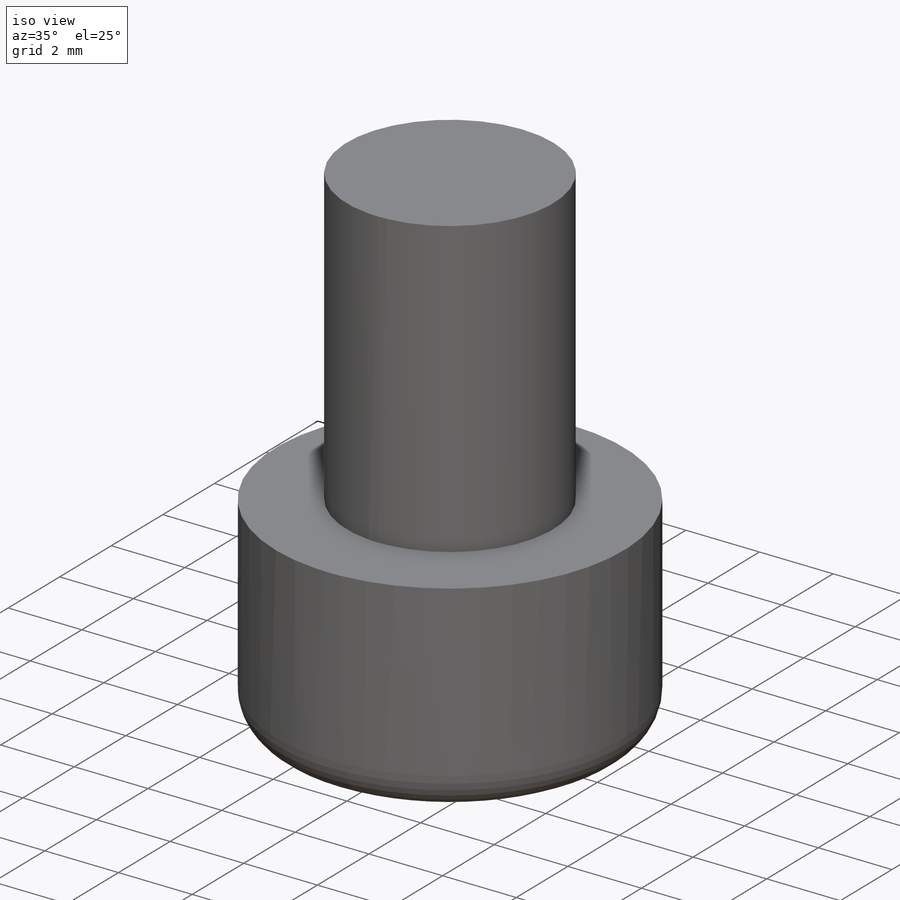
[diagram: iso view]
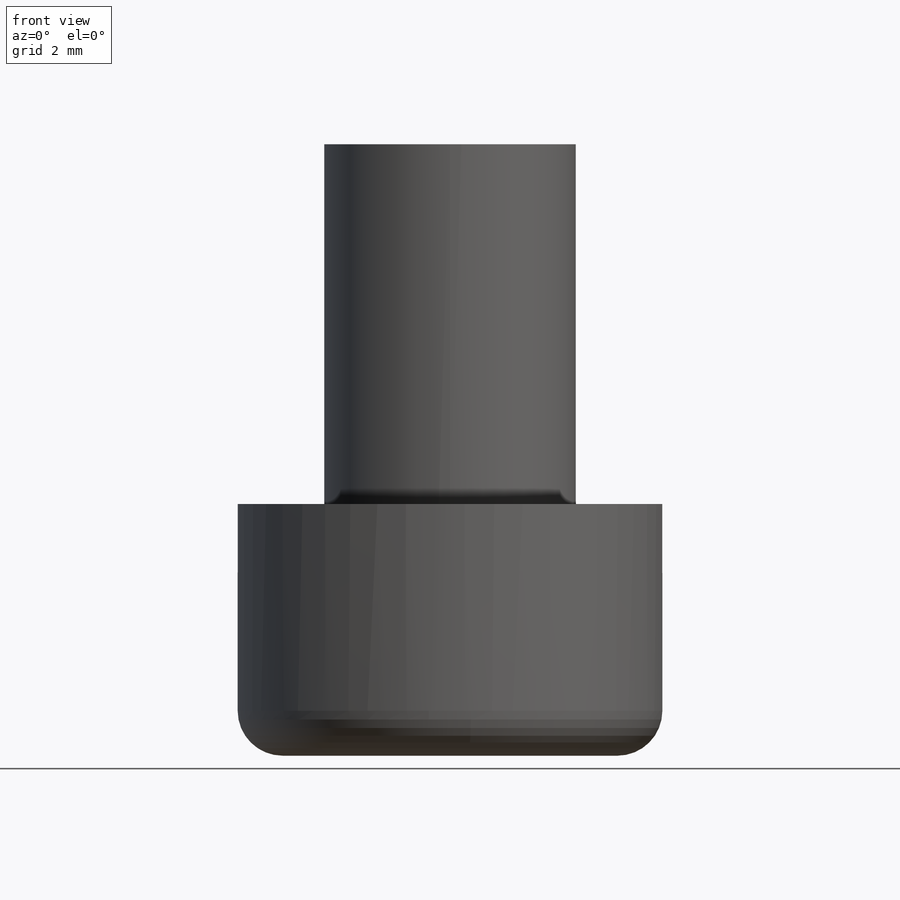
[diagram: front view]
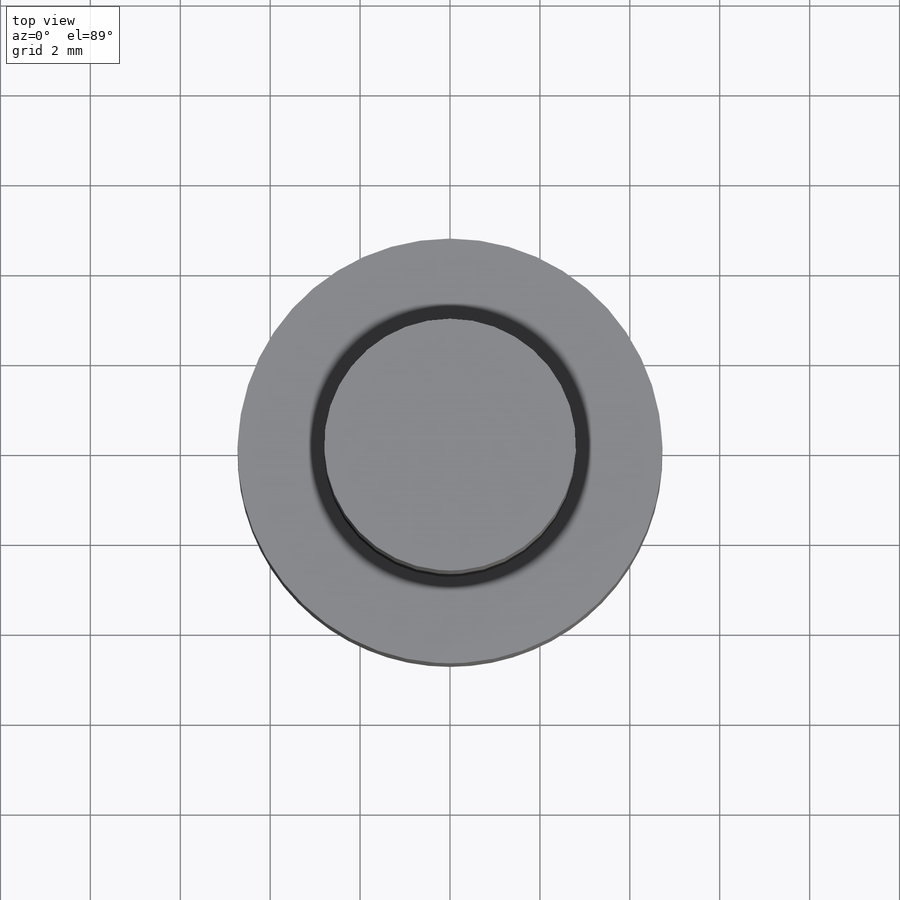
[diagram: top view]
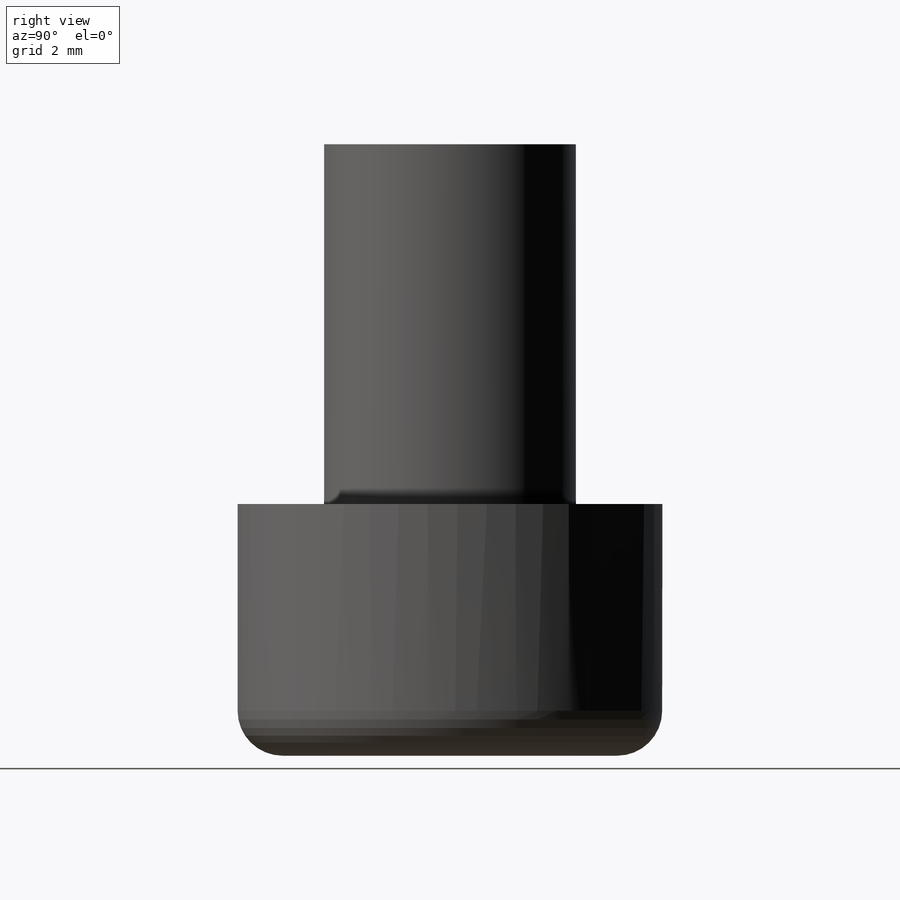
[diagram: right view]
SOLIDWORKS PART (.sldprt)
format: sldprt  version: not decoded by parser v0  size: 138,752 bytes
history: native  units: mm
features: sketch x2, extrude x2, material x1, fillet x1 (+14 scaffold rows collapsed)
feature tree (20):
  scaffold x14  (default folders/planes/origin — collapsed)
  material  "Material <not specified>"
  sketch  "Bearing Plug"  dims[D1=9.45mm]
  extrude  "BearingPlug Extrude"  Depth=5.6mm
  sketch  "Sketch2"  dims[D1=5.6mm]
  extrude  "Boss-Extrude2"  Depth=8mm
  fillet  "Fillet1"  Radius=1mm
decode coverage: 5 of 5 modeling features carry decoded parameters
note: suppression state not decoded; provenance and decode notes live in map.json
